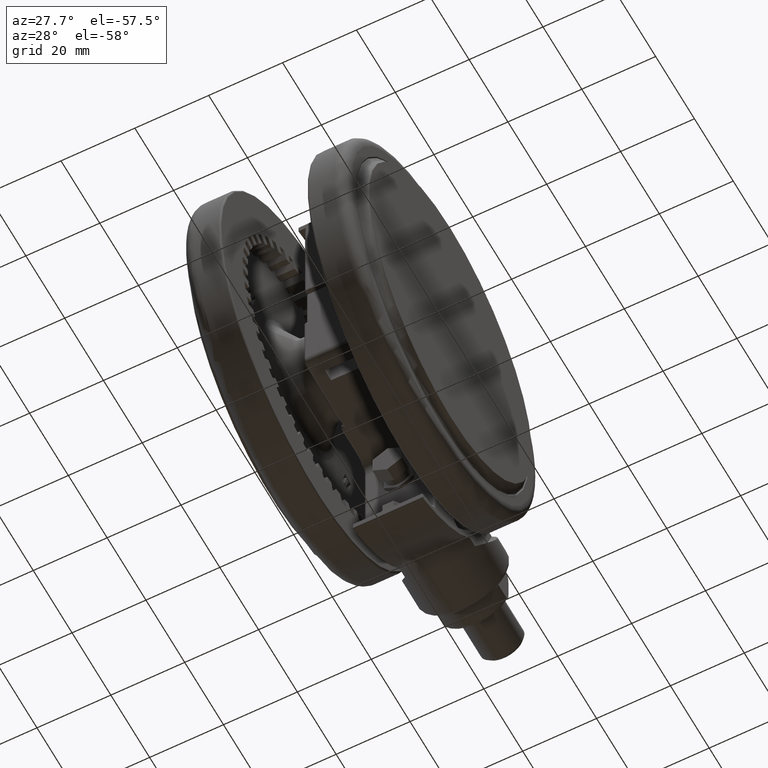
[diagram: clean part render]
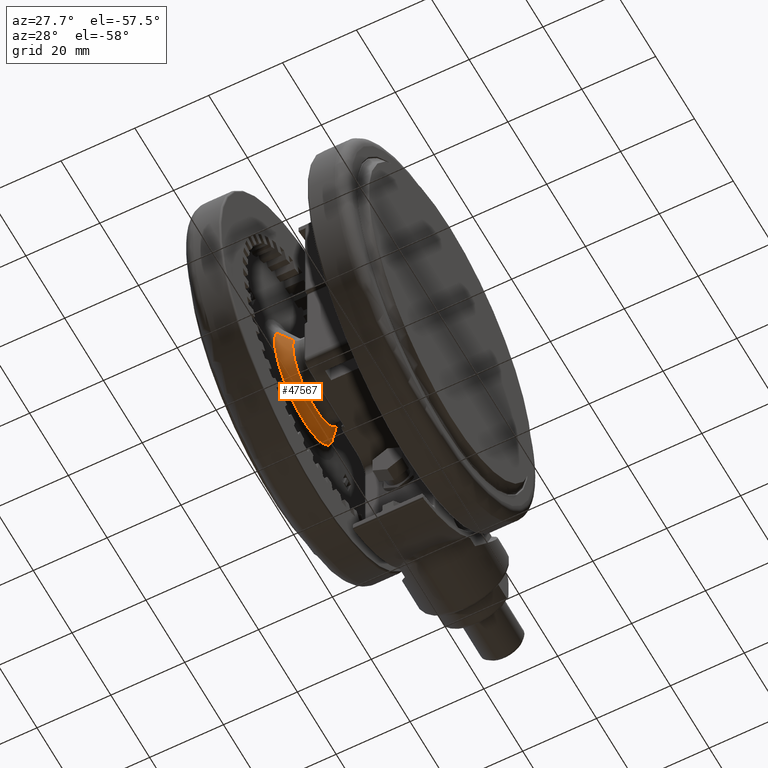
[diagram: same view with one face highlighted and labeled with its STEP entity id]
A machine part, auxiliary view. The second image highlights one B-rep face of the part: STEP entity #47567.
In plain terms, the highlighted conical surface has half-angle 47.726 deg.
Its self-contained STEP definition (entity closure, byte-faithful):
#1466 = DIRECTION ( 'NONE',  ( 0.2841974592789973700, 0.9587657712597810200, 0.0000000000000000000 ) ) ;
#2716 = ORIENTED_EDGE ( 'NONE', *, *, #38311, .T. ) ;
#8229 = ORIENTED_EDGE ( 'NONE', *, *, #29019, .T. ) ;
#8313 = VECTOR ( 'NONE', #33114, 1000.000000000000000 ) ;
#10176 = CIRCLE ( 'NONE', #22059, 11.65465441200737700 ) ;
#10767 = EDGE_CURVE ( 'NONE', #44879, #22307, #27510, .T. ) ;
#11986 = EDGE_LOOP ( 'NONE', ( #15036, #2716, #8229, #46096 ) ) ;
#12672 = FACE_OUTER_BOUND ( 'NONE', #11986, .T. ) ;
#13378 = DIRECTION ( 'NONE',  ( 2.738200171890767100E-017, 1.985513823368855200E-016, 1.000000000000000000 ) ) ;
#14631 = AXIS2_PLACEMENT_3D ( 'NONE', #35994, #13378, #39782 ) ;
#15036 = ORIENTED_EDGE ( 'NONE', *, *, #10767, .F. ) ;
#15518 = CARTESIAN_POINT ( 'NONE',  ( 1.410792968852564900E-014, -7.004820882903888400E-015, -36.59514037455210200 ) ) ;
#15890 = CARTESIAN_POINT ( 'NONE',  ( -3.126172052068955300, -10.54642348385759700, -35.99999999999994300 ) ) ;
#16252 = VECTOR ( 'NONE', #38503, 1000.000000000000000 ) ;
#17749 = CIRCLE ( 'NONE', #14631, 15.06967040367769600 ) ;
#18305 = VERTEX_POINT ( 'NONE', #35342 ) ;
#18401 = EDGE_CURVE ( 'NONE', #18305, #22307, #17749, .T. ) ;
#19077 = VERTEX_POINT ( 'NONE', #29179 ) ;
#19276 = DIRECTION ( 'NONE',  ( 0.2841974592789973100, 0.9587657712597809100, 0.0000000000000000000 ) ) ;
#21529 = CONICAL_SURFACE ( 'NONE', #45919, 11.00000000000000000, 0.8329812666744321700 ) ;
#22059 = AXIS2_PLACEMENT_3D ( 'NONE', #15518, #41896, #19276 ) ;
#22307 = VERTEX_POINT ( 'NONE', #48388 ) ;
#27510 = LINE ( 'NONE', #15890, #16252 ) ;
#29019 = EDGE_CURVE ( 'NONE', #19077, #18305, #38436, .T. ) ;
#29179 = CARTESIAN_POINT ( 'NONE',  ( 3.312223172667268400, 11.17408372609445900, -36.59514037455210200 ) ) ;
#29337 = CARTESIAN_POINT ( 'NONE',  ( 3.126172052068985100, 10.54642348385758400, -35.99999999999994300 ) ) ;
#33114 = DIRECTION ( 'NONE',  ( 0.2102890888778420900, 0.7094292151554811900, -0.6726727939963121900 ) ) ;
#35342 = CARTESIAN_POINT ( 'NONE',  ( 4.282762040897117700, 14.44828416721273500, -39.69970036697966300 ) ) ;
#35470 = DIRECTION ( 'NONE',  ( -2.738200171890767100E-017, -1.985513823368855200E-016, -1.000000000000000000 ) ) ;
#35994 = CARTESIAN_POINT ( 'NONE',  ( 1.374382499487215700E-014, -8.562789839355341000E-015, -39.69970036697966300 ) ) ;
#37711 = CARTESIAN_POINT ( 'NONE',  ( -3.312223172667237300, -11.17408372609446800, -36.59514037455210200 ) ) ;
#38311 = EDGE_CURVE ( 'NONE', #44879, #19077, #10176, .T. ) ;
#38436 = LINE ( 'NONE', #29337, #8313 ) ;
#38503 = DIRECTION ( 'NONE',  ( -0.2102890888778420600, -0.7094292151554814100, -0.6726727939963119700 ) ) ;
#39251 = CARTESIAN_POINT ( 'NONE',  ( 1.412422582328462500E-014, -6.886654938852065300E-015, -35.99999999999994300 ) ) ;
#39782 = DIRECTION ( 'NONE',  ( 0.2841974592789973700, 0.9587657712597809100, 0.0000000000000000000 ) ) ;
#41896 = DIRECTION ( 'NONE',  ( -2.738200171890767100E-017, -1.985513823368855200E-016, -1.000000000000000000 ) ) ;
#44879 = VERTEX_POINT ( 'NONE', #37711 ) ;
#45919 = AXIS2_PLACEMENT_3D ( 'NONE', #39251, #35470, #1466 ) ;
#46096 = ORIENTED_EDGE ( 'NONE', *, *, #18401, .T. ) ;
#47567 = ADVANCED_FACE ( 'NONE', ( #12672 ), #21529, .T. ) ;
#48388 = CARTESIAN_POINT ( 'NONE',  ( -4.282762040897087500, -14.44828416721274200, -39.69970036697966300 ) ) ;